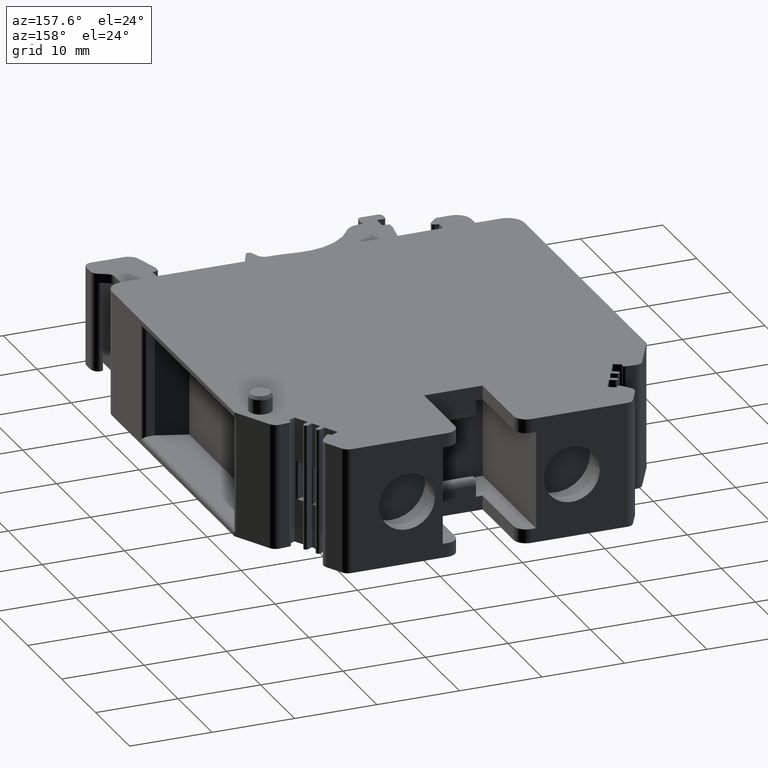
[diagram: clean part render]
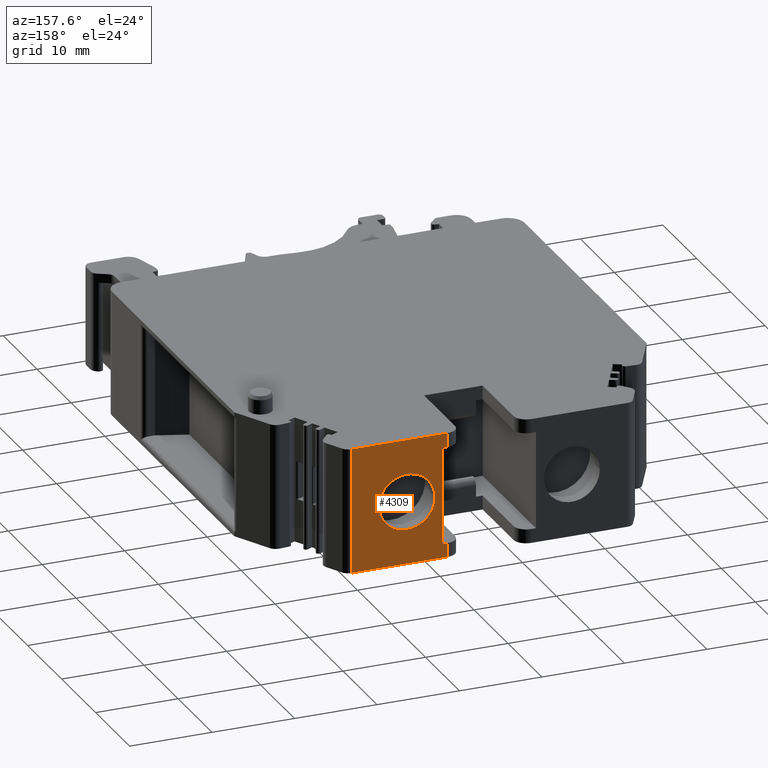
[diagram: same view with one face highlighted and labeled with its STEP entity id]
A machine part, auxiliary view. The second image highlights one B-rep face of the part: STEP entity #4309.
In plain terms, the highlighted planar face has unit normal (0, 1, 0).
Its self-contained STEP definition (entity closure, byte-faithful):
#119=DIRECTION('',(0.E0,0.E0,-1.E0));
#120=VECTOR('',#119,1.7E0);
#121=CARTESIAN_POINT('',(3.005E1,5.24E1,-1.35E1));
#122=LINE('',#121,#120);
#123=DIRECTION('',(1.E0,0.E0,0.E0));
#124=VECTOR('',#123,1.1693236E1);
#125=CARTESIAN_POINT('',(3.005E1,5.24E1,-1.52E1));
#126=LINE('',#125,#124);
#127=DIRECTION('',(4.020176004958E-14,0.E0,1.E0));
#128=VECTOR('',#127,1.52E1);
#129=CARTESIAN_POINT('',(4.1743236E1,5.24E1,-1.52E1));
#130=LINE('',#129,#128);
#131=DIRECTION('',(-1.E0,1.336836115060E-14,0.E0));
#132=VECTOR('',#131,1.1693236E1);
#133=CARTESIAN_POINT('',(4.1743236E1,5.24E1,0.E0));
#134=LINE('',#133,#132);
#135=DIRECTION('',(0.E0,0.E0,-1.E0));
#136=VECTOR('',#135,1.7E0);
#137=CARTESIAN_POINT('',(3.005E1,5.24E1,0.E0));
#138=LINE('',#137,#136);
#139=DIRECTION('',(1.E0,0.E0,0.E0));
#140=VECTOR('',#139,6.E-1);
#141=CARTESIAN_POINT('',(3.005E1,5.24E1,-1.7E0));
#142=LINE('',#141,#140);
#143=DIRECTION('',(0.E0,0.E0,-1.E0));
#144=VECTOR('',#143,1.18E1);
#145=CARTESIAN_POINT('',(3.065E1,5.24E1,-1.7E0));
#146=LINE('',#145,#144);
#147=DIRECTION('',(-1.E0,0.E0,0.E0));
#148=VECTOR('',#147,6.E-1);
#149=CARTESIAN_POINT('',(3.065E1,5.24E1,-1.35E1));
#150=LINE('',#149,#148);
#151=CARTESIAN_POINT('',(3.5E1,5.24E1,-7.6E0));
#152=DIRECTION('',(0.E0,1.E0,0.E0));
#153=DIRECTION('',(-1.E0,0.E0,0.E0));
#154=AXIS2_PLACEMENT_3D('',#151,#152,#153);
#156=CARTESIAN_POINT('',(3.5E1,5.24E1,-7.6E0));
#157=DIRECTION('',(0.E0,1.E0,0.E0));
#158=DIRECTION('',(1.E0,0.E0,0.E0));
#159=AXIS2_PLACEMENT_3D('',#156,#157,#158);
#3142=CARTESIAN_POINT('',(4.1743236E1,5.24E1,-1.52E1));
#3143=VERTEX_POINT('',#3142);
#3144=CARTESIAN_POINT('',(4.1743236E1,5.24E1,0.E0));
#3145=VERTEX_POINT('',#3144);
#3146=CARTESIAN_POINT('',(3.065E1,5.24E1,-1.7E0));
#3147=CARTESIAN_POINT('',(3.065E1,5.24E1,-1.35E1));
#3148=VERTEX_POINT('',#3146);
#3149=VERTEX_POINT('',#3147);
#3150=CARTESIAN_POINT('',(3.005E1,5.24E1,-1.35E1));
#3151=VERTEX_POINT('',#3150);
#3152=CARTESIAN_POINT('',(3.005E1,5.24E1,-1.7E0));
#3153=VERTEX_POINT('',#3152);
#3906=CARTESIAN_POINT('',(3.16E1,5.24E1,-7.6E0));
#3907=VERTEX_POINT('',#3906);
#3908=CARTESIAN_POINT('',(3.84E1,5.24E1,-7.6E0));
#3909=VERTEX_POINT('',#3908);
#3940=CARTESIAN_POINT('',(3.005E1,5.24E1,0.E0));
#3941=VERTEX_POINT('',#3940);
#3950=CARTESIAN_POINT('',(3.005E1,5.24E1,-1.52E1));
#3951=VERTEX_POINT('',#3950);
#4281=CARTESIAN_POINT('',(3.5896618E1,5.24E1,-7.6E0));
#4282=DIRECTION('',(0.E0,1.E0,0.E0));
#4283=DIRECTION('',(-1.E0,0.E0,0.E0));
#4284=AXIS2_PLACEMENT_3D('',#4281,#4282,#4283);
#4285=PLANE('',#4284);
#4287=ORIENTED_EDGE('',*,*,#4286,.T.);
#4289=ORIENTED_EDGE('',*,*,#4288,.T.);
#4290=ORIENTED_EDGE('',*,*,#4270,.T.);
#4292=ORIENTED_EDGE('',*,*,#4291,.T.);
#4294=ORIENTED_EDGE('',*,*,#4293,.T.);
#4296=ORIENTED_EDGE('',*,*,#4295,.T.);
#4298=ORIENTED_EDGE('',*,*,#4297,.T.);
#4300=ORIENTED_EDGE('',*,*,#4299,.T.);
#4301=EDGE_LOOP('',(#4287,#4289,#4290,#4292,#4294,#4296,#4298,#4300));
#4302=FACE_OUTER_BOUND('',#4301,.F.);
#4304=ORIENTED_EDGE('',*,*,#4303,.T.);
#4306=ORIENTED_EDGE('',*,*,#4305,.T.);
#4307=EDGE_LOOP('',(#4304,#4306));
#4308=FACE_BOUND('',#4307,.F.);
#4309=ADVANCED_FACE('',(#4302,#4308),#4285,.T.);
#155=CIRCLE('',#154,3.4E0);
#160=CIRCLE('',#159,3.4E0);
#4270=EDGE_CURVE('',#3143,#3145,#130,.T.);
#4286=EDGE_CURVE('',#3151,#3951,#122,.T.);
#4288=EDGE_CURVE('',#3951,#3143,#126,.T.);
#4291=EDGE_CURVE('',#3145,#3941,#134,.T.);
#4293=EDGE_CURVE('',#3941,#3153,#138,.T.);
#4295=EDGE_CURVE('',#3153,#3148,#142,.T.);
#4297=EDGE_CURVE('',#3148,#3149,#146,.T.);
#4299=EDGE_CURVE('',#3149,#3151,#150,.T.);
#4303=EDGE_CURVE('',#3907,#3909,#155,.T.);
#4305=EDGE_CURVE('',#3909,#3907,#160,.T.);